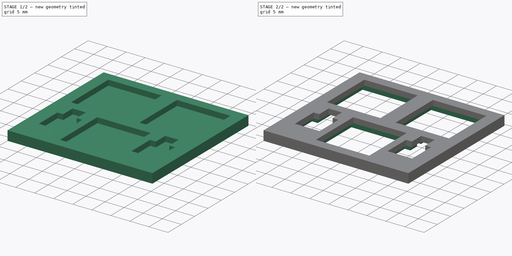
[diagram: build sequence overview — one tinted view per stage of 2, left to right]
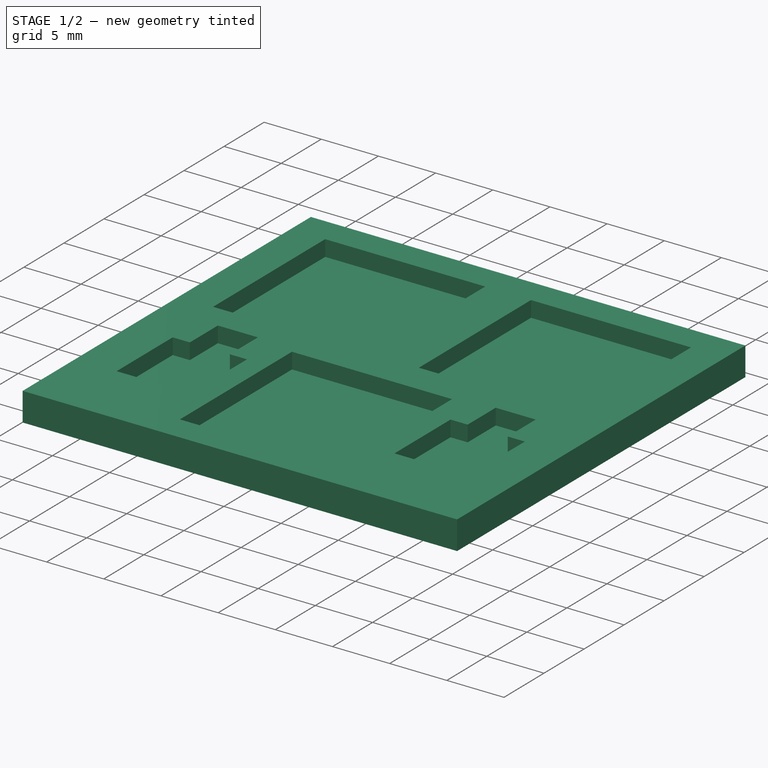
[diagram: stage 1 of 2 — iso view after this stage's code; geometry added in this stage tinted green]
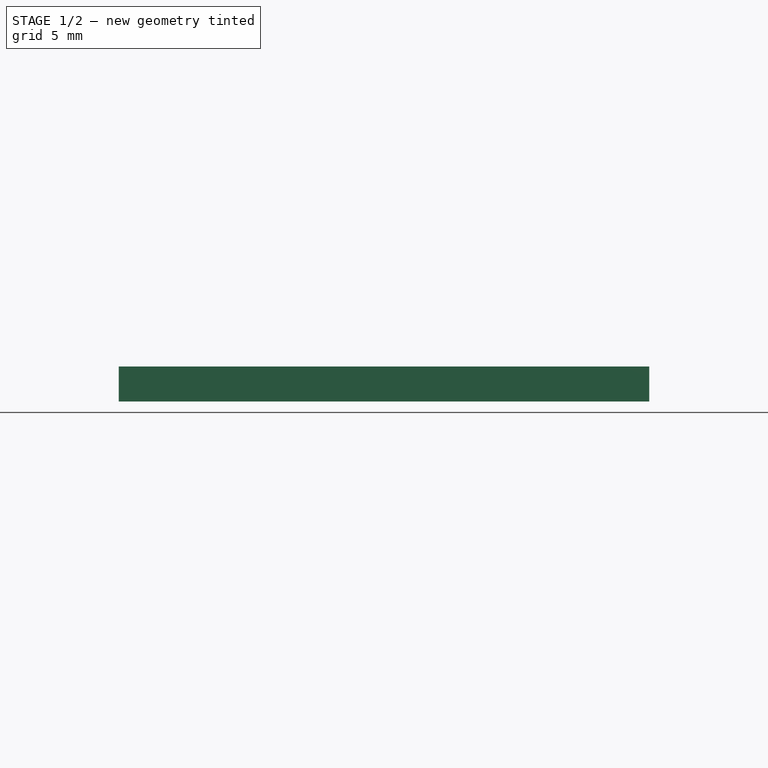
[diagram: stage 1 of 2 — front view after this stage's code; geometry added in this stage tinted green]
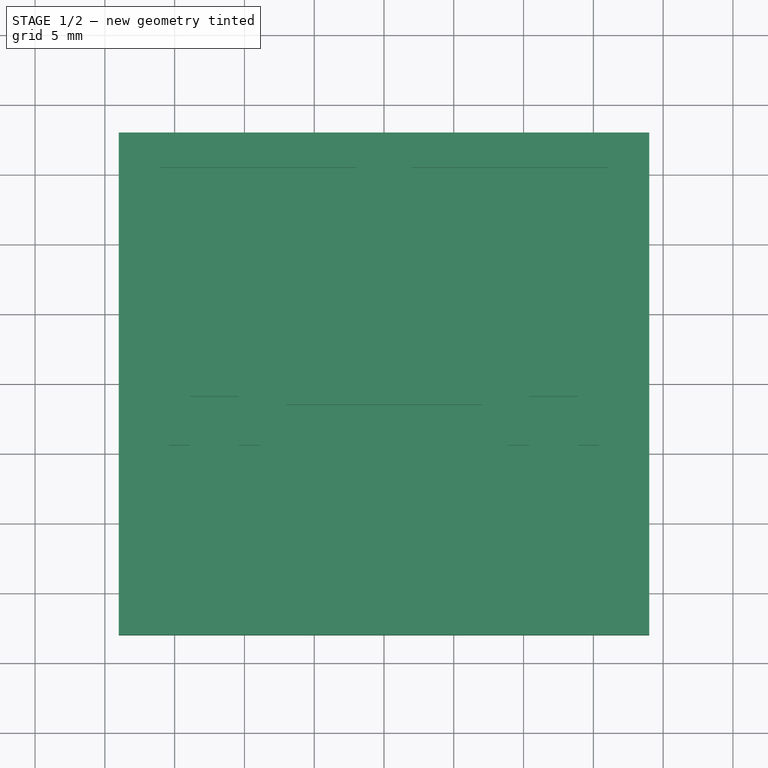
[diagram: stage 1 of 2 — top view after this stage's code; geometry added in this stage tinted green]
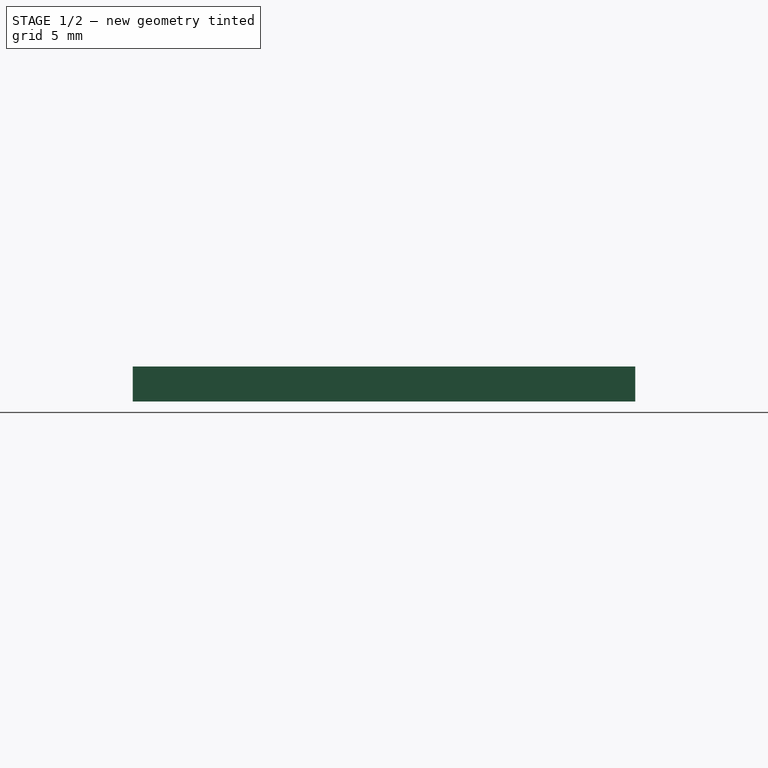
[diagram: stage 1 of 2 — right view after this stage's code; geometry added in this stage tinted green]
FCSTD DOCUMENT  (FreeCAD 0.19R24366 (Git))
Label: kailh_choc_3_button_plate
License: All rights reserved
LicenseURL: http://en.wikipedia.org/wiki/All_rights_reserved
objects: Sketcher::SketchObject×3, PartDesign::Pocket×2, PartDesign::Pad×1, PartDesign::Plane×1, PartDesign::Body×1, Spreadsheet::Sheet×1
note: 11 computed .brp shape members not serialized (recipe doc carries the construction recipe); baked Part::Feature solids carry a one-line shape summary decoded from their .brp

FEATURE [Sketcher::SketchObject] Sketch
  FullyConstrained = true
  MapMode = 5
  Support = -> [XY_Plane]
  sketch-geometry (4):
    g0: LineSegment StartX=-19 StartY=18 StartZ=0 EndX=19 EndY=18 EndZ=0
    g1: LineSegment StartX=19 StartY=18 StartZ=0 EndX=19 EndY=-18 EndZ=0
    g2: LineSegment StartX=19 StartY=-18 StartZ=0 EndX=-19 EndY=-18 EndZ=0
    g3: LineSegment StartX=-19 StartY=-18 StartZ=0 EndX=-19 EndY=18 EndZ=0
  constraints (11):
    c: Coincident(g0,g1)
    c: Coincident(g1,g2)
    c: Coincident(g2,g3)
    c: Coincident(g3,g0)
    c: Horizontal(g0)
    c: Horizontal(g2)
    c: Vertical(g1)
    c: Vertical(g3)
    c: Symmetric(g0,g2,g-1)
    c: Distance(g1) = 36
    c: Distance(g2) = 38
FEATURE [PartDesign::Pad] Pad  label="plateBody"
  Direction = (1,1,1)
  Length = 2.5
  Length2 = 100
  Profile = -> Sketch
  Type = 0
  expr: Length = <<Spreadsheet>>.plateThickness
FEATURE [PartDesign::Plane] DatumPlane
  AttachmentOffset = pos=(0,0,2.5) rot=(0,0,1;0rad)
  Length = 60
  MapMode = 5
  Placement = pos=(0,0,2.5) rot=(0,0,1;0rad)
  ResizeMode = 0
  Support = -> [XY_Plane]
  Width = 60
  expr: .AttachmentOffset.Base.z = <<Spreadsheet>>.plateThickness
FEATURE [Sketcher::SketchObject] Sketch001
  FullyConstrained = true
  MapMode = 5
  Placement = pos=(0,0,2.5) rot=(0,0,1;0rad)
  Support = -> [DatumPlane]
  sketch-geometry (41):
    g0: LineSegment StartX=-16 StartY=15.5 StartZ=0 EndX=-2 EndY=15.5 EndZ=0
    g1: LineSegment StartX=-2 StartY=15.5 StartZ=0 EndX=-2 EndY=1.5 EndZ=0
    g2: LineSegment StartX=-2 StartY=1.5 StartZ=0 EndX=-16 EndY=1.5 EndZ=0
    g3: LineSegment StartX=-16 StartY=1.5 StartZ=0 EndX=-16 EndY=15.5 EndZ=0
    g4: LineSegment StartX=2 StartY=15.5 StartZ=0 EndX=16 EndY=15.5 EndZ=0
    g5: LineSegment StartX=16 StartY=15.5 StartZ=0 EndX=16 EndY=1.5 EndZ=0
    g6: LineSegment StartX=16 StartY=1.5 StartZ=0 EndX=2 EndY=1.5 EndZ=0
    g7: LineSegment StartX=2 StartY=1.5 StartZ=0 EndX=2 EndY=15.5 EndZ=0
    g8: LineSegment StartX=-2 StartY=1.5 StartZ=0 EndX=2 EndY=1.5 EndZ=0
    g9: LineSegment StartX=2 StartY=1.5 StartZ=0 EndX=2 EndY=-1.5 EndZ=0
    g10: LineSegment StartX=2 StartY=-1.5 StartZ=0 EndX=-2 EndY=-1.5 EndZ=0
    g11: LineSegment StartX=-2 StartY=-1.5 StartZ=0 EndX=-2 EndY=1.5 EndZ=0
    g12: LineSegment StartX=-7 StartY=-1.5 StartZ=0 EndX=7 EndY=-1.5 EndZ=0
    g13: LineSegment StartX=7 StartY=-1.5 StartZ=0 EndX=7 EndY=-15.5 EndZ=0
    g14: LineSegment StartX=7 StartY=-15.5 StartZ=0 EndX=-7 EndY=-15.5 EndZ=0
    g15: LineSegment StartX=-7 StartY=-15.5 StartZ=0 EndX=-7 EndY=-1.5 EndZ=0
    g16: GeomPoint X=0 Y=-1.5 Z=0
    g17: LineSegment StartX=10.4 StartY=-0.9 StartZ=0 EndX=10.4 EndY=-4.4 EndZ=0
    g18: LineSegment StartX=10.4 StartY=-4.4 StartZ=0 EndX=8.9 EndY=-4.4 EndZ=0
    g19: LineSegment StartX=8.9 StartY=-4.4 StartZ=0 EndX=8.9 EndY=-11.4 EndZ=0
    g20: LineSegment StartX=8.9 StartY=-11.4 StartZ=0 EndX=15.4 EndY=-11.4 EndZ=0
    g21: LineSegment StartX=15.4 StartY=-11.4 StartZ=0 EndX=15.4 EndY=-4.4 EndZ=0
    g22: LineSegment StartX=15.4 StartY=-4.4 StartZ=0 EndX=13.9 EndY=-4.4 EndZ=0
    g23: LineSegment StartX=13.9 StartY=-4.4 StartZ=0 EndX=13.9 EndY=-0.9 EndZ=0
    g24: LineSegment StartX=13.9 StartY=-0.9 StartZ=0 EndX=10.4 EndY=-0.9 EndZ=0
    g25: LineSegment StartX=-15.4 StartY=-11.4 StartZ=0 EndX=-8.9 EndY=-11.4 EndZ=0
    g26: LineSegment StartX=-8.9 StartY=-11.4 StartZ=0 EndX=-8.9 EndY=-4.4 EndZ=0
    g27: LineSegment StartX=-8.9 StartY=-4.4 StartZ=0 EndX=-10.4 EndY=-4.4 EndZ=0
    g28: LineSegment StartX=-10.4 StartY=-4.4 StartZ=0 EndX=-10.4 EndY=-0.9 EndZ=0
    g29: LineSegment StartX=-10.4 StartY=-0.9 StartZ=0 EndX=-13.9 EndY=-0.9 EndZ=0
    g30: LineSegment StartX=-13.9 StartY=-0.9 StartZ=0 EndX=-13.9 EndY=-4.4 EndZ=0
    g31: LineSegment StartX=-13.9 StartY=-4.4 StartZ=0 EndX=-15.4 EndY=-4.4 EndZ=0
    g32: LineSegment StartX=-15.4 StartY=-4.4 StartZ=0 EndX=-15.4 EndY=-11.4 EndZ=0
    g33: LineSegment StartX=-7 StartY=-15.5 StartZ=0 EndX=-8.9 EndY=-15.5 EndZ=0
    g34: LineSegment StartX=-8.9 StartY=-15.5 StartZ=0 EndX=-8.9 EndY=-11.4 EndZ=0
    g35: LineSegment StartX=-8.9 StartY=-11.4 StartZ=0 EndX=-7 EndY=-11.4 EndZ=0
    g36: LineSegment StartX=-7 StartY=-11.4 StartZ=0 EndX=-7 EndY=-15.5 EndZ=0
    g37: LineSegment StartX=7 StartY=-15.5 StartZ=0 EndX=8.9 EndY=-15.5 EndZ=0
    g38: LineSegment StartX=8.9 StartY=-15.5 StartZ=0 EndX=8.9 EndY=-11.4 EndZ=0
    g39: LineSegment StartX=8.9 StartY=-11.4 StartZ=0 EndX=7 EndY=-11.4 EndZ=0
    g40: LineSegment StartX=7 StartY=-11.4 StartZ=0 EndX=7 EndY=-15.5 EndZ=0
  constraints (113):
    c: Coincident(g0,g1)
    c: Coincident(g1,g2)
    c: Coincident(g2,g3)
    c: Coincident(g3,g0)
    c: Horizontal(g0)
    c: Horizontal(g2)
    c: Vertical(g1)
    c: Vertical(g3)
    c: Coincident(g4,g5)
    c: Coincident(g5,g6)
    c: Coincident(g6,g7)
    c: Coincident(g7,g4)
    c: Horizontal(g4)
    c: Horizontal(g6)
    c: Vertical(g5)
    c: Vertical(g7)
    c: Equal(g0,g1)
    c: Equal(g1,g4)
    c: Equal(g4,g5)
    c: Distance(g5) = 14
    c: Coincident(g8,g9)
    c: Coincident(g9,g10)
    c: Coincident(g10,g11)
    c: Coincident(g11,g8)
    c: Horizontal(g8)
    c: Horizontal(g10)
    c: Vertical(g9)
    c: Vertical(g11)
    c: Symmetric(g10,g8,g-1)
    c: Coincident(g8,g6)
    c: Coincident(g1,g8)
    c: Distance(g9) = 3
    c: Distance(g10) = 4
    c: Coincident(g12,g13)
    c: Coincident(g13,g14)
    c: Coincident(g14,g15)
    c: Coincident(g15,g12)
    c: Horizontal(g12)
    c: Horizontal(g14)
    c: Vertical(g13)
    c: Vertical(g15)
    c: Equal(g13,g14)
    c: Equal(g13,g5)
    c: Symmetric(g10,g9,g16)
    c: Symmetric(g12,g12,g16)
    c: Vertical(g17)
    c: Coincident(g17,g18)
    c: Horizontal(g18)
    c: Coincident(g18,g19)
    c: Coincident(g19,g20)
    c: Coincident(g20,g21)
    c: Coincident(g21,g22)
    c: Coincident(g22,g23)
    c: Vertical(g23)
    c: Coincident(g23,g24)
    c: Coincident(g24,g17)
    c: Horizontal(g24)
    c: Horizontal(g20)
    c: Horizontal(g22)
    c: Vertical(g21)
    c: Vertical(g19)
    c: Distance(g20) = 6.5
    c: Distance(g21) = 7
    c: Equal(g21,g19)
    c: Equal(g18,g22)
    c: Distance(g22) = 1.5
    c: Distance(g23) = 3.5
    c: Coincident(g25,g26)
    c: Vertical(g26)
    c: Coincident(g26,g27)
    c: Coincident(g27,g28)
    c: Coincident(g28,g29)
    c: Coincident(g29,g30)
    c: Coincident(g30,g31)
    c: Coincident(g31,g32)
    c: Coincident(g32,g25)
    c: Horizontal(g25)
    c: Horizontal(g27)
    c: Horizontal(g31)
    c: Horizontal(g29)
    c: Vertical(g28)
    c: Vertical(g30)
    c: Vertical(g32)
    c: Equal(g26,g32)
    c: Equal(g32,g19)
    c: Equal(g25,g20)
    c: Equal(g31,g27)
    c: Equal(g27,g18)
    c: Equal(g30,g17)
    c: Coincident(g33,g34)
    c: Coincident(g34,g35)
    c: Coincident(g35,g36)
    c: Coincident(g36,g33)
    c: Horizontal(g33)
    c: Horizontal(g35)
    c: Vertical(g34)
    c: Vertical(g36)
    c: Coincident(g33,g14)
    c: Coincident(g34,g25)
    c: Coincident(g37,g38)
    c: Coincident(g38,g39)
    c: Coincident(g39,g40)
    c: Coincident(g40,g37)
    c: Horizontal(g37)
    c: Horizontal(g39)
    c: Vertical(g38)
    c: Vertical(g40)
    c: Coincident(g37,g13)
    c: Coincident(g38,g19)
    c: Equal(g37,g33)
    c: Equal(g34,g38)
    c: Distance(g37) = 1.9
    c: Distance(g38) = 4.1
FEATURE [PartDesign::Pocket] Pocket  label="switchHolderHole"
  BaseFeature = -> Pad
  Length = 1.4
  Length2 = 100
  Profile = -> Sketch001
  Type = 0
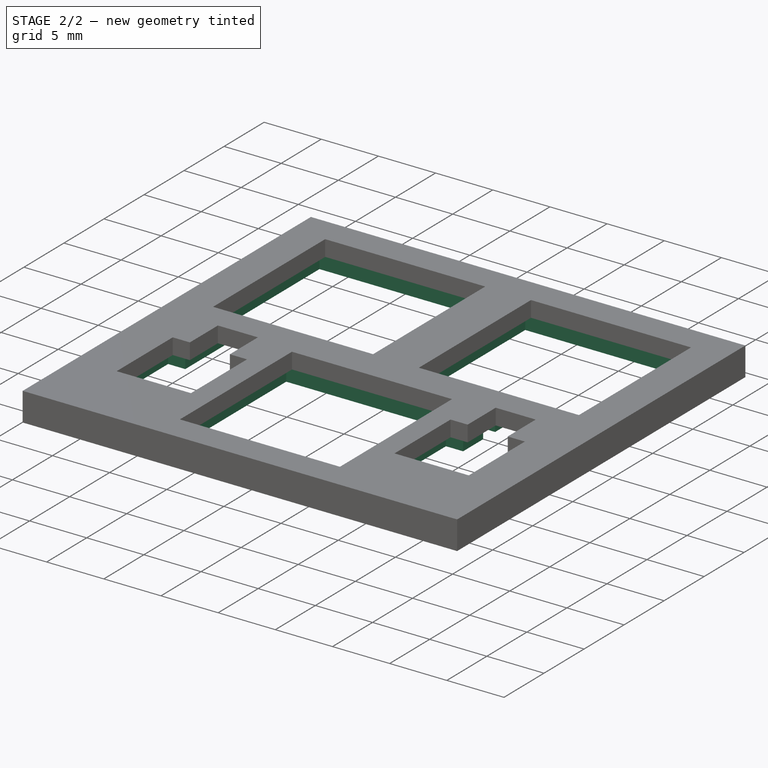
[diagram: stage 2 of 2 — iso view after this stage's code; geometry added in this stage tinted green]
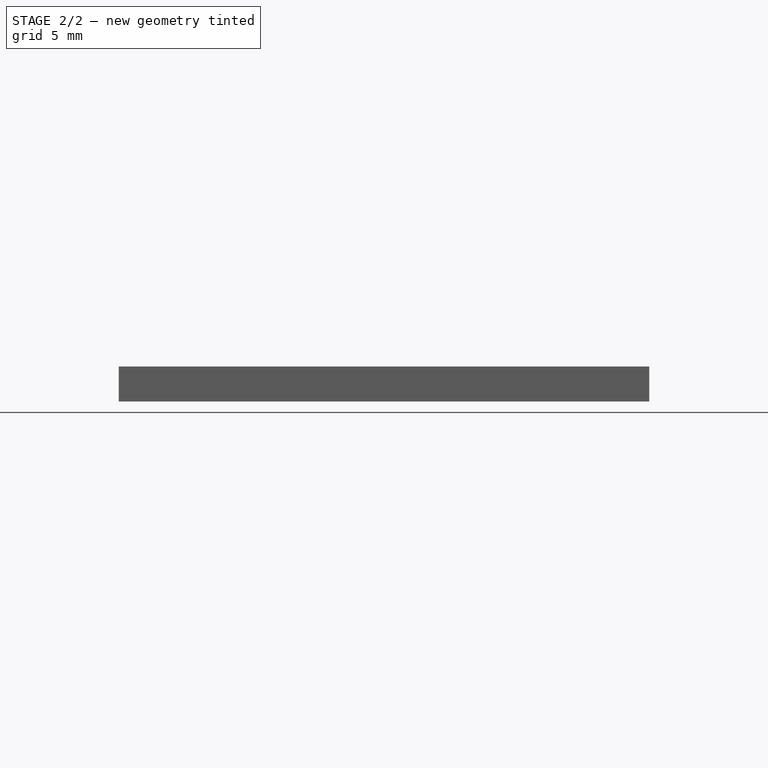
[diagram: stage 2 of 2 — front view after this stage's code; geometry added in this stage tinted green]
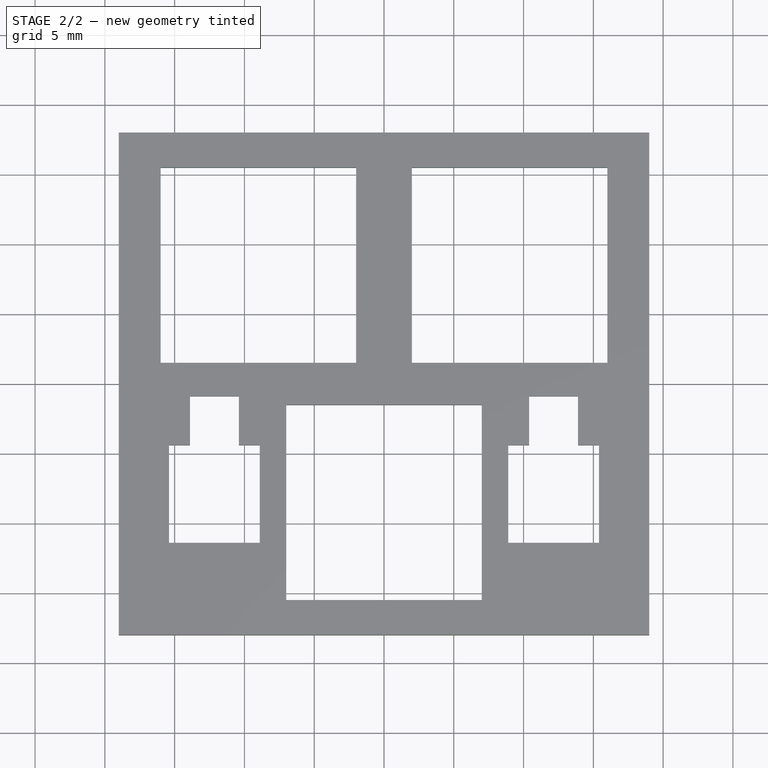
[diagram: stage 2 of 2 — top view after this stage's code; geometry added in this stage tinted green]
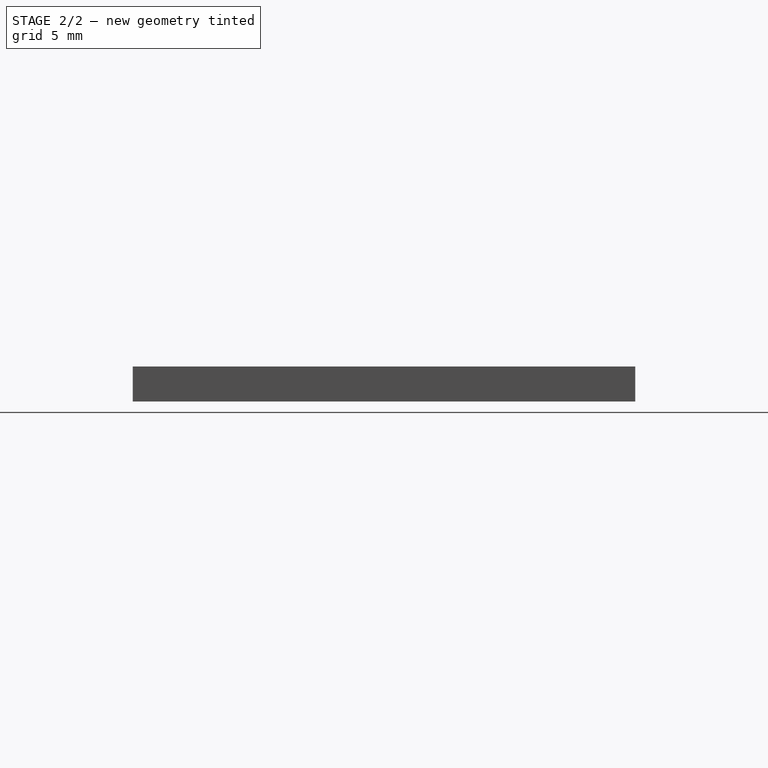
[diagram: stage 2 of 2 — right view after this stage's code; geometry added in this stage tinted green]
FEATURE [Sketcher::SketchObject] Sketch002
  FullyConstrained = true
  MapMode = 5
  Support = -> [XY_Plane]
  sketch-geometry (45):
    g0: LineSegment StartX=-1.5 StartY=1.5 StartZ=0 EndX=1.5 EndY=1.5 EndZ=0
    g1: LineSegment StartX=1.5 StartY=1.5 StartZ=0 EndX=1.5 EndY=-1.5 EndZ=0
    g2: LineSegment StartX=1.5 StartY=-1.5 StartZ=0 EndX=-1.5 EndY=-1.5 EndZ=0
    g3: LineSegment StartX=-1.5 StartY=-1.5 StartZ=0 EndX=-1.5 EndY=1.5 EndZ=0
    g4: LineSegment StartX=1.5 StartY=1.5 StartZ=0 EndX=16.5 EndY=1.5 EndZ=0
    g5: LineSegment StartX=16.5 StartY=1.5 StartZ=0 EndX=16.5 EndY=15.5 EndZ=0
    g6: LineSegment StartX=16.5 StartY=15.5 StartZ=0 EndX=1.5 EndY=15.5 EndZ=0
    g7: LineSegment StartX=1.5 StartY=15.5 StartZ=0 EndX=1.5 EndY=1.5 EndZ=0
    g8: LineSegment StartX=-1.5 StartY=1.5 StartZ=0 EndX=-16.5 EndY=1.5 EndZ=0
    g9: LineSegment StartX=-16.5 StartY=1.5 StartZ=0 EndX=-16.5 EndY=15.5 EndZ=0
    g10: LineSegment StartX=-16.5 StartY=15.5 StartZ=0 EndX=-1.5 EndY=15.5 EndZ=0
    g11: LineSegment StartX=-1.5 StartY=15.5 StartZ=0 EndX=-1.5 EndY=1.5 EndZ=0
    g12: LineSegment StartX=-7.5 StartY=-1.5 StartZ=0 EndX=7.5 EndY=-1.5 EndZ=0
    g13: LineSegment StartX=7.5 StartY=-1.5 StartZ=0 EndX=7.5 EndY=-15.5 EndZ=0
    g14: LineSegment StartX=7.5 StartY=-15.5 StartZ=0 EndX=-7.5 EndY=-15.5 EndZ=0
    g15: LineSegment StartX=-7.5 StartY=-15.5 StartZ=0 EndX=-7.5 EndY=-1.5 EndZ=0
    g16: GeomPoint X=-1e-16 Y=-1.5 Z=0
    g17: LineSegment StartX=-7.5 StartY=-15.5 StartZ=0 EndX=-8.15 EndY=-15.5 EndZ=0
    g18: LineSegment StartX=-8.15 StartY=-15.5 StartZ=0 EndX=-8.15 EndY=-11.9 EndZ=0
    g19: LineSegment StartX=-8.15 StartY=-11.9 StartZ=0 EndX=-7.5 EndY=-11.9 EndZ=0
    g20: LineSegment StartX=-7.5 StartY=-11.9 StartZ=0 EndX=-7.5 EndY=-15.5 EndZ=0
    g21: LineSegment StartX=7.5 StartY=-15.5 StartZ=0 EndX=8.15 EndY=-15.5 EndZ=0
    g22: LineSegment StartX=8.15 StartY=-15.5 StartZ=0 EndX=8.15 EndY=-11.9 EndZ=0
    g23: LineSegment StartX=8.15 StartY=-11.9 StartZ=0 EndX=7.5 EndY=-11.9 EndZ=0
    g24: LineSegment StartX=7.5 StartY=-11.9 StartZ=0 EndX=7.5 EndY=-15.5 EndZ=0
    g25: LineSegment StartX=8.15 StartY=-11.9 StartZ=0 EndX=8.15 EndY=-3.9 EndZ=0
    g26: LineSegment StartX=8.15 StartY=-3.9 StartZ=0 EndX=9.65 EndY=-3.9 EndZ=0
    g27: LineSegment StartX=9.65 StartY=1.1 StartZ=0 EndX=14.65 EndY=1.1 EndZ=0
    g28: LineSegment StartX=14.65 StartY=1.1 StartZ=0 EndX=14.65 EndY=-3.9 EndZ=0
    g29: LineSegment StartX=14.65 StartY=-3.9 StartZ=0 EndX=16.15 EndY=-3.9 EndZ=0
    g30: LineSegment StartX=16.15 StartY=-3.9 StartZ=0 EndX=16.15 EndY=-11.9 EndZ=0
    g31: LineSegment StartX=16.15 StartY=-11.9 StartZ=0 EndX=8.15 EndY=-11.9 EndZ=0
    g32: LineSegment StartX=-8.15 StartY=-11.9 StartZ=0 EndX=-8.15 EndY=-3.9 EndZ=0
    g33: LineSegment StartX=-9.65 StartY=1.1 StartZ=0 EndX=-14.65 EndY=1.1 EndZ=0
    g34: LineSegment StartX=-14.65 StartY=1.1 StartZ=0 EndX=-14.65 EndY=-3.9 EndZ=0
    g35: LineSegment StartX=-14.65 StartY=-3.9 StartZ=0 EndX=-16.15 EndY=-3.9 EndZ=0
    g36: LineSegment StartX=-16.15 StartY=-3.9 StartZ=0 EndX=-16.15 EndY=-11.9 EndZ=0
    g37: LineSegment StartX=-16.15 StartY=-11.9 StartZ=0 EndX=-8.15 EndY=-11.9 EndZ=0
    g38: LineSegment StartX=-9.65 StartY=-3.9 StartZ=0 EndX=-8.15 EndY=-3.9 EndZ=0
    g39: LineSegment StartX=-9.65 StartY=-3.9 StartZ=0 EndX=-9.65 EndY=-1.4 EndZ=0
    g40: LineSegment StartX=-9.65 StartY=-1.4 StartZ=0 EndX=9.65 EndY=-1.4 EndZ=0
    g41: LineSegment StartX=9.65 StartY=-1.4 StartZ=0 EndX=9.65 EndY=-3.9 EndZ=0
    g42: LineSegment StartX=-9.65 StartY=1.1 StartZ=0 EndX=-9.65 EndY=0.1 EndZ=0
    g43: LineSegment StartX=-9.65 StartY=0.1 StartZ=0 EndX=9.65 EndY=0.1 EndZ=0
    g44: LineSegment StartX=9.65 StartY=0.1 StartZ=0 EndX=9.65 EndY=1.1 EndZ=0
  constraints (125):
    c: Coincident(g0,g1)
    c: Coincident(g1,g2)
    c: Coincident(g2,g3)
    c: Coincident(g3,g0)
    c: Horizontal(g0)
    c: Horizontal(g2)
    c: Vertical(g1)
    c: Vertical(g3)
    c: Symmetric(g0,g2,g-1)
    c: Distance(g2) = 3
    c: Distance(g1) = 3
    c: Coincident(g4,g5)
    c: Coincident(g5,g6)
    c: Coincident(g6,g7)
    c: Coincident(g7,g4)
    c: Horizontal(g4)
    c: Horizontal(g6)
    c: Vertical(g5)
    c: Vertical(g7)
    c: Coincident(g4,g0)
    c: Coincident(g8,g9)
    c: Coincident(g9,g10)
    c: Coincident(g10,g11)
    c: Coincident(g11,g8)
    c: Horizontal(g8)
    c: Horizontal(g10)
    c: Vertical(g9)
    c: Vertical(g11)
    c: Coincident(g8,g0)
    c: Distance(g5) = 14
    c: Equal(g8,g4)
    c: Equal(g9,g5)
    c: Distance(g6) = 15
    c: Coincident(g12,g13)
    c: Coincident(g13,g14)
    c: Coincident(g14,g15)
    c: Coincident(g15,g12)
    c: Horizontal(g12)
    c: Horizontal(g14)
    c: Vertical(g13)
    c: Vertical(g15)
    c: Equal(g12,g6)
    c: Equal(g13,g5)
    c: Symmetric(g2,g1,g16)
    c: Symmetric(g12,g12,g16)
    c: Coincident(g17,g18)
    c: Coincident(g18,g19)
    c: Coincident(g19,g20)
    c: Coincident(g20,g17)
    c: Horizontal(g17)
    c: Horizontal(g19)
    c: Vertical(g18)
    c: Vertical(g20)
    c: Coincident(g17,g14)
    c: Coincident(g21,g22)
    c: Coincident(g22,g23)
    c: Coincident(g23,g24)
    c: Coincident(g24,g21)
    c: Horizontal(g21)
    c: Horizontal(g23)
    c: Vertical(g22)
    c: Vertical(g24)
    c: Coincident(g21,g13)
    c: Equal(g21,g17)
    c: Equal(g18,g22)
    c: Distance(g22) = 3.6
    c: Distance(g21) = 0.65
    c: Coincident(g22,g25)
    c: Vertical(g25)
    c: Coincident(g25,g26)
    c: Horizontal(g26)
    c: Horizontal(g27)
    c: Coincident(g27,g28)
    c: Vertical(g28)
    c: Coincident(g28,g29)
    c: Horizontal(g29)
    c: Coincident(g29,g30)
    c: Vertical(g30)
    c: Coincident(g30,g31)
    c: Coincident(g31,g25)
    c: Coincident(g18,g32)
    c: Vertical(g32)
    c: Horizontal(g33)
    c: Coincident(g33,g34)
    c: Vertical(g34)
    c: Coincident(g34,g35)
    c: Horizontal(g35)
    c: Coincident(g35,g36)
    c: Vertical(g36)
    c: Coincident(g36,g37)
    c: Coincident(g37,g32)
    c: Horizontal(g37)
    c: Horizontal(g31)
    c: Equal(g31,g37)
    c: Equal(g26,g29)
    c: Equal(g30,g25)
    c: Equal(g25,g32)
    c: Equal(g32,g36)
    c: Coincident(g38,g32)
    c: Horizontal(g38)
    c: Equal(g38,g35)
    c: Equal(g35,g26)
    c: Distance(g31) = 8
    c: Distance(g30) = 8
    c: Distance(g29) = 1.5
    c: Distance(g28) = 5
    c: Equal(g28,g34)
    c: Coincident(g38,g39)
    c: Vertical(g39)
    c: Coincident(g39,g40)
    c: Horizontal(g40)
    c: Coincident(g40,g41)
    c: Coincident(g41,g26)
    c: Vertical(g41)
    c: Coincident(g33,g42)
    c: Vertical(g42)
    c: Coincident(g42,g43)
    c: Horizontal(g43)
    c: Coincident(g43,g44)
    c: Coincident(g44,g27)
    c: Vertical(g44)
    c: Equal(g43,g40)
    c: Equal(g33,g27)
    c: Distance(g41) = 2.5
    c: Distance(g44) = 1
FEATURE [PartDesign::Pocket] Pocket001  label="switchHole"
  BaseFeature = -> Pocket
  Length = 1.1
  Length2 = 100
  Profile = -> Sketch002
  Reversed = true
  Type = 0
  expr: Length = <<Spreadsheet>>.plateThickness - <<Spreadsheet>>.switchThickness
FEATURE [PartDesign::Body] Body  label="3keyPlate"
  Group = -> [Sketch,Pad,DatumPlane,Sketch001,Pocket,Sketch002,Pocket001]
  Origin = -> Origin
  Tip = -> Pocket001
FEATURE [Spreadsheet::Sheet] Spreadsheet
  cells = A1=total plate thickness; B1=switch thickness; C1=stabilizer thickness; A2(plateThickness)=2.5; B2(switchThickness)=1.4; C2(stabilizerThickness)=1.1
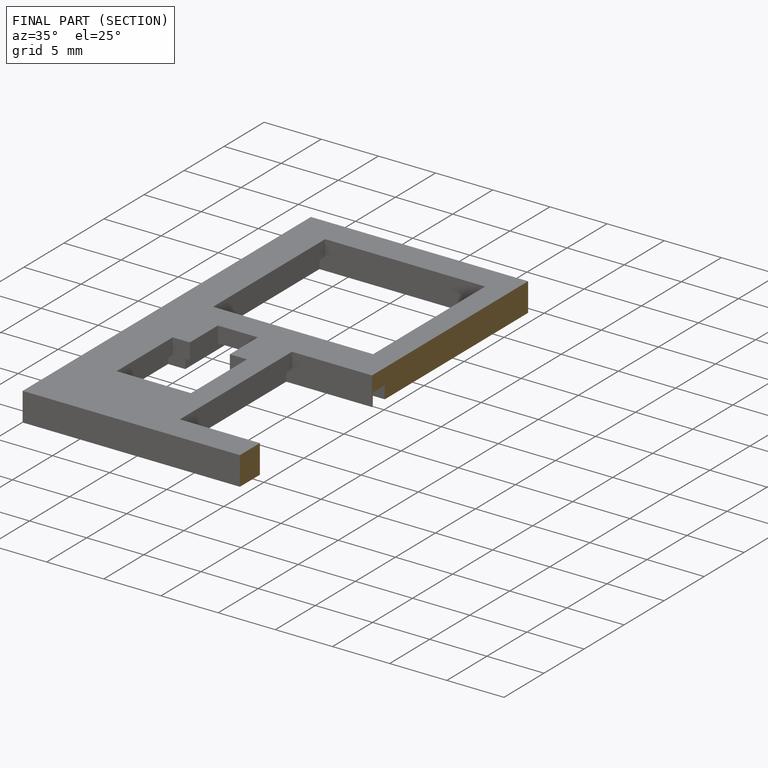
[diagram: finished part — half-section view (interior)]
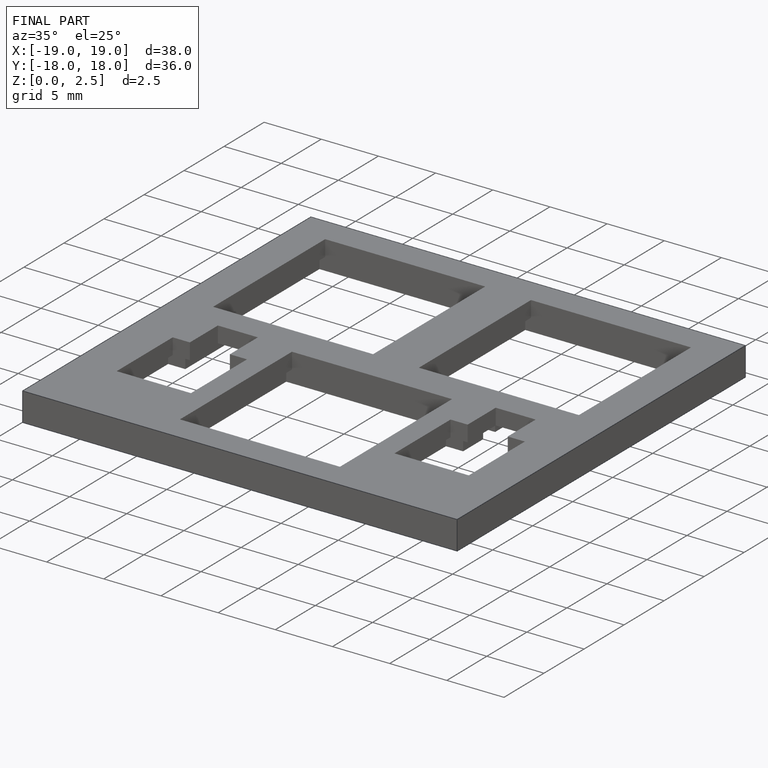
[diagram: finished part — iso view with bounding-box wireframe]
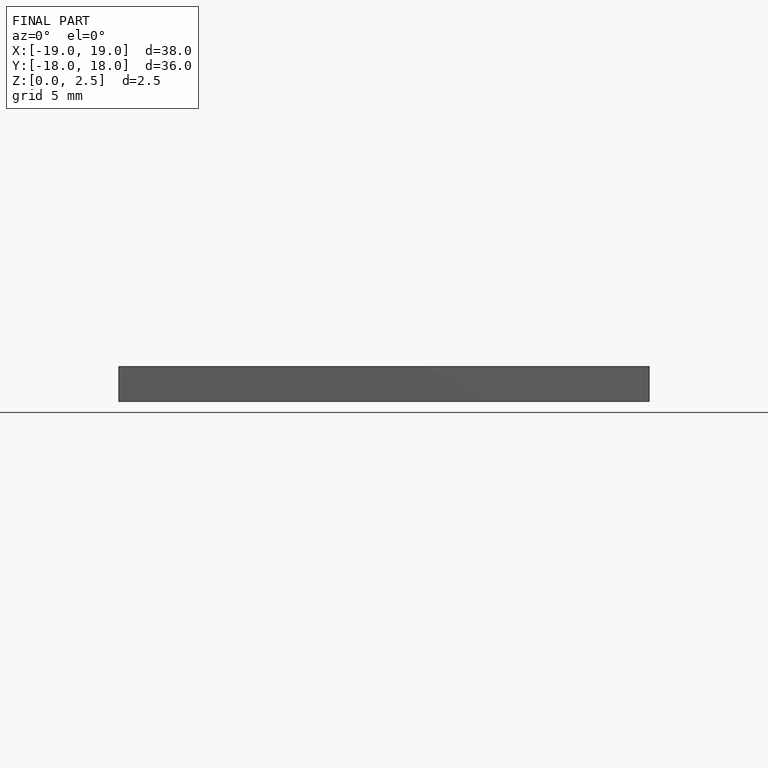
[diagram: finished part — front view with bounding-box wireframe]
